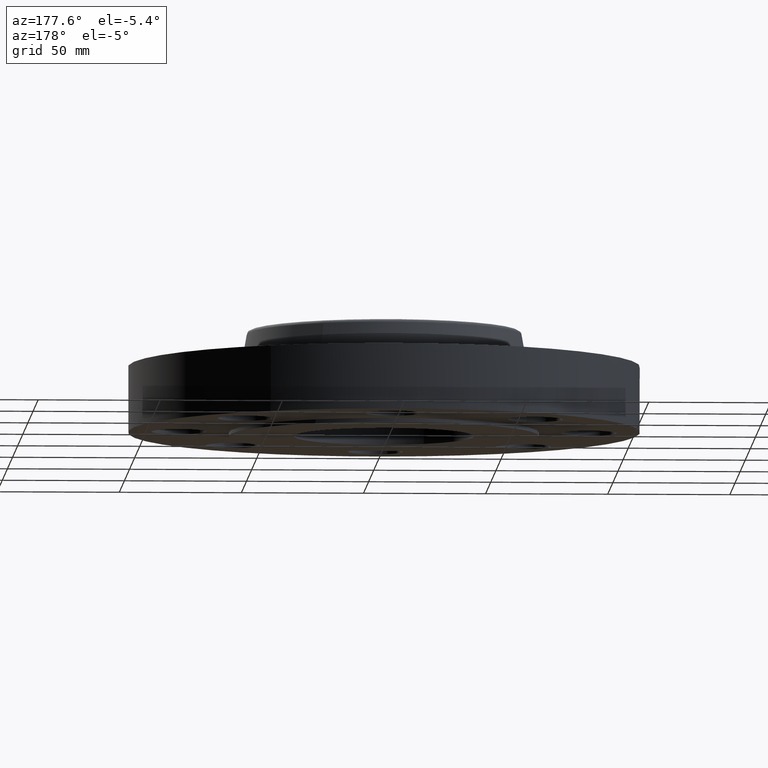
[diagram: clean part render]
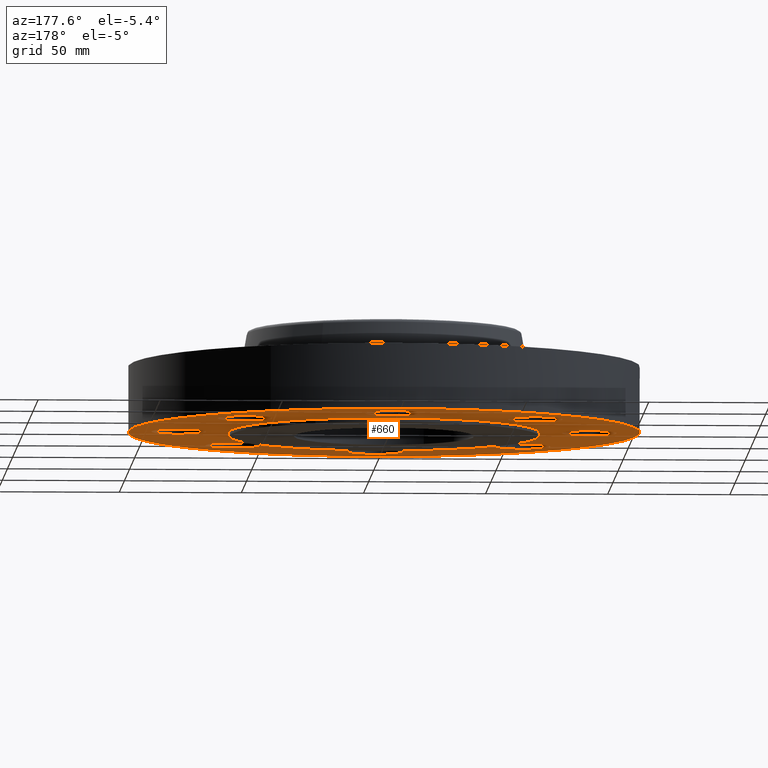
[diagram: same view with one face highlighted and labeled with its STEP entity id]
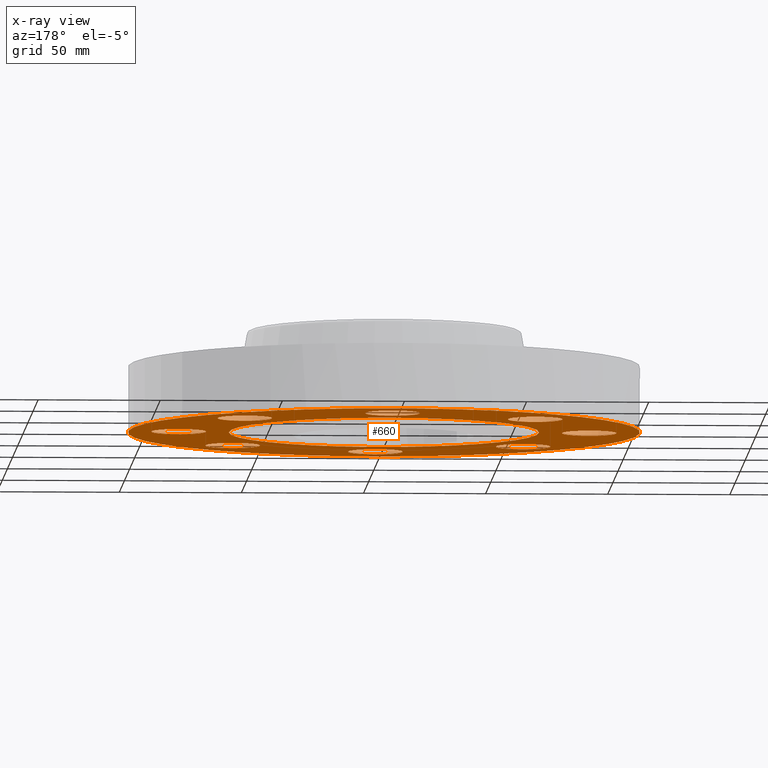
[diagram: x-ray of the same camera — body ghosted, the highlighted face saturated]
A machine part, auxiliary view. The second image highlights one B-rep face of the part: STEP entity #660.
The next image is the same camera in x-ray: the body ghosted, the highlighted face saturated — about 0% of this face is hidden behind the body in this view.
In plain terms, the highlighted planar face has unit normal (0, 0, -1).
Its self-contained STEP definition (entity closure, byte-faithful):
#379=AXIS2_PLACEMENT_3D('Circle Axis2P3D',#377,#378,$) ;
#410=AXIS2_PLACEMENT_3D('Circle Axis2P3D',#408,#409,$) ;
#492=AXIS2_PLACEMENT_3D('Plane Axis2P3D',#489,#490,#491) ;
#496=AXIS2_PLACEMENT_3D('Circle Axis2P3D',#494,#495,$) ;
#505=AXIS2_PLACEMENT_3D('Circle Axis2P3D',#503,#504,$) ;
#514=AXIS2_PLACEMENT_3D('Circle Axis2P3D',#512,#513,$) ;
#523=AXIS2_PLACEMENT_3D('Circle Axis2P3D',#521,#522,$) ;
#536=AXIS2_PLACEMENT_3D('Circle Axis2P3D',#534,#535,$) ;
#545=AXIS2_PLACEMENT_3D('Circle Axis2P3D',#543,#544,$) ;
#554=AXIS2_PLACEMENT_3D('Circle Axis2P3D',#552,#553,$) ;
#563=AXIS2_PLACEMENT_3D('Circle Axis2P3D',#561,#562,$) ;
#572=AXIS2_PLACEMENT_3D('Circle Axis2P3D',#570,#571,$) ;
#581=AXIS2_PLACEMENT_3D('Circle Axis2P3D',#579,#580,$) ;
#590=AXIS2_PLACEMENT_3D('Circle Axis2P3D',#588,#589,$) ;
#599=AXIS2_PLACEMENT_3D('Circle Axis2P3D',#597,#598,$) ;
#608=AXIS2_PLACEMENT_3D('Circle Axis2P3D',#606,#607,$) ;
#617=AXIS2_PLACEMENT_3D('Circle Axis2P3D',#615,#616,$) ;
#626=AXIS2_PLACEMENT_3D('Circle Axis2P3D',#624,#625,$) ;
#635=AXIS2_PLACEMENT_3D('Circle Axis2P3D',#633,#634,$) ;
#644=AXIS2_PLACEMENT_3D('Circle Axis2P3D',#642,#643,$) ;
#653=AXIS2_PLACEMENT_3D('Circle Axis2P3D',#651,#652,$) ;
#374=CARTESIAN_POINT('Vertex',(-1.19856384652,-2.19395640473,-3.45340554053E-012)) ;
#377=CARTESIAN_POINT('Axis2P3D Location',(0.,0.,-3.45340554053E-012)) ;
#381=CARTESIAN_POINT('Vertex',(1.19856384652,2.19395640473,-3.45340554053E-012)) ;
#408=CARTESIAN_POINT('Axis2P3D Location',(0.,0.,-3.45340554053E-012)) ;
#489=CARTESIAN_POINT('Axis2P3D Location',(0.,2.50000000001,0.)) ;
#494=CARTESIAN_POINT('Axis2P3D Location',(1.1189649382E-015,1.00007491352E-011,0.)) ;
#498=CARTESIAN_POINT('Vertex',(-1.97763034678,-3.62002806781,0.)) ;
#500=CARTESIAN_POINT('Vertex',(1.97763034678,3.62002806783,0.)) ;
#503=CARTESIAN_POINT('Axis2P3D Location',(-1.1189649382E-015,9.99963017027E-012,0.)) ;
#512=CARTESIAN_POINT('Axis2P3D Location',(3.30999999999,-2.81139940724E-012,0.)) ;
#516=CARTESIAN_POINT('Vertex',(3.69613632721,-0.21094723699,0.)) ;
#518=CARTESIAN_POINT('Vertex',(2.92386367279,0.21094723701,0.)) ;
#521=CARTESIAN_POINT('Axis2P3D Location',(3.31000000001,2.28117787127E-011,0.)) ;
#534=CARTESIAN_POINT('Axis2P3D Location',(2.34052344572,-2.34052344573,0.)) ;
#538=CARTESIAN_POINT('Vertex',(2.216646052,-1.91832160855,0.)) ;
#540=CARTESIAN_POINT('Vertex',(2.46440083947,-2.76272528291,0.)) ;
#543=CARTESIAN_POINT('Axis2P3D Location',(2.34052344574,-2.34052344573,0.)) ;
#552=CARTESIAN_POINT('Axis2P3D Location',(-3.49676543189E-017,-3.31000000003,0.)) ;
#556=CARTESIAN_POINT('Vertex',(0.210947237,-2.92386367278,0.)) ;
#558=CARTESIAN_POINT('Vertex',(-0.210947237,-3.69613632727,0.)) ;
#561=CARTESIAN_POINT('Axis2P3D Location',(3.49676543189E-017,-3.31000000003,0.)) ;
#570=CARTESIAN_POINT('Axis2P3D Location',(-2.34052344574,-2.34052344574,0.)) ;
#574=CARTESIAN_POINT('Vertex',(-1.91832160856,-2.21664605207,0.)) ;
#576=CARTESIAN_POINT('Vertex',(-2.76272528292,-2.46440083946,0.)) ;
#579=CARTESIAN_POINT('Axis2P3D Location',(-2.34052344575,-2.34052344572,0.)) ;
#588=CARTESIAN_POINT('Axis2P3D Location',(-3.31000000001,-2.81139940724E-012,0.)) ;
#592=CARTESIAN_POINT('Vertex',(-2.92386367279,-0.21094723699,0.)) ;
#594=CARTESIAN_POINT('Vertex',(-3.69613632721,0.21094723701,0.)) ;
#597=CARTESIAN_POINT('Axis2P3D Location',(-3.30999999999,2.28117787127E-011,0.)) ;
#606=CARTESIAN_POINT('Axis2P3D Location',(-2.34052344574,2.34052344575,0.)) ;
#610=CARTESIAN_POINT('Vertex',(-2.216646052,1.91832160857,0.)) ;
#612=CARTESIAN_POINT('Vertex',(-2.46440083947,2.76272528293,0.)) ;
#615=CARTESIAN_POINT('Axis2P3D Location',(-2.34052344574,2.34052344575,0.)) ;
#624=CARTESIAN_POINT('Axis2P3D Location',(-1.28117289306E-011,3.31000000002,0.)) ;
#628=CARTESIAN_POINT('Vertex',(-0.210947237,2.9238636728,0.)) ;
#630=CARTESIAN_POINT('Vertex',(0.210947237,3.69613632722,0.)) ;
#633=CARTESIAN_POINT('Axis2P3D Location',(1.28117289306E-011,3.31,0.)) ;
#642=CARTESIAN_POINT('Axis2P3D Location',(2.34052344572,2.34052344575,0.)) ;
#646=CARTESIAN_POINT('Vertex',(1.91832160856,2.21664605201,0.)) ;
#648=CARTESIAN_POINT('Vertex',(2.76272528292,2.46440083941,0.)) ;
#651=CARTESIAN_POINT('Axis2P3D Location',(2.34052344573,2.34052344573,0.)) ;
#378=DIRECTION('Axis2P3D Direction',(0.,0.,-0.0393700787402)) ;
#409=DIRECTION('Axis2P3D Direction',(0.,0.,-0.0393700787402)) ;
#490=DIRECTION('Axis2P3D Direction',(0.,0.,-0.0393700787402)) ;
#491=DIRECTION('Axis2P3D XDirection',(0.0393700787402,0.,0.)) ;
#495=DIRECTION('Axis2P3D Direction',(0.,0.,-0.0393700787402)) ;
#504=DIRECTION('Axis2P3D Direction',(0.,0.,-0.0393700787402)) ;
#513=DIRECTION('Axis2P3D Direction',(0.,0.,-0.0393700787402)) ;
#522=DIRECTION('Axis2P3D Direction',(0.,0.,-0.0393700787402)) ;
#535=DIRECTION('Axis2P3D Direction',(0.,0.,-0.0393700787402)) ;
#544=DIRECTION('Axis2P3D Direction',(0.,0.,-0.0393700787402)) ;
#553=DIRECTION('Axis2P3D Direction',(0.,0.,-0.0393700787402)) ;
#562=DIRECTION('Axis2P3D Direction',(0.,0.,-0.0393700787402)) ;
#571=DIRECTION('Axis2P3D Direction',(0.,0.,-0.0393700787402)) ;
#580=DIRECTION('Axis2P3D Direction',(0.,0.,-0.0393700787402)) ;
#589=DIRECTION('Axis2P3D Direction',(0.,0.,-0.0393700787402)) ;
#598=DIRECTION('Axis2P3D Direction',(0.,0.,-0.0393700787402)) ;
#607=DIRECTION('Axis2P3D Direction',(0.,0.,-0.0393700787402)) ;
#616=DIRECTION('Axis2P3D Direction',(0.,0.,-0.0393700787402)) ;
#625=DIRECTION('Axis2P3D Direction',(0.,0.,-0.0393700787402)) ;
#634=DIRECTION('Axis2P3D Direction',(0.,0.,-0.0393700787402)) ;
#643=DIRECTION('Axis2P3D Direction',(0.,0.,-0.0393700787402)) ;
#652=DIRECTION('Axis2P3D Direction',(0.,0.,-0.0393700787402)) ;
#509=ORIENTED_EDGE('',*,*,#502,.T.) ;
#510=ORIENTED_EDGE('',*,*,#507,.T.) ;
#527=ORIENTED_EDGE('',*,*,#520,.F.) ;
#528=ORIENTED_EDGE('',*,*,#525,.F.) ;
#531=ORIENTED_EDGE('',*,*,#412,.F.) ;
#532=ORIENTED_EDGE('',*,*,#383,.F.) ;
#549=ORIENTED_EDGE('',*,*,#542,.F.) ;
#550=ORIENTED_EDGE('',*,*,#547,.F.) ;
#567=ORIENTED_EDGE('',*,*,#560,.F.) ;
#568=ORIENTED_EDGE('',*,*,#565,.F.) ;
#585=ORIENTED_EDGE('',*,*,#578,.F.) ;
#586=ORIENTED_EDGE('',*,*,#583,.F.) ;
#603=ORIENTED_EDGE('',*,*,#596,.F.) ;
#604=ORIENTED_EDGE('',*,*,#601,.F.) ;
#621=ORIENTED_EDGE('',*,*,#614,.F.) ;
#622=ORIENTED_EDGE('',*,*,#619,.F.) ;
#639=ORIENTED_EDGE('',*,*,#632,.F.) ;
#640=ORIENTED_EDGE('',*,*,#637,.F.) ;
#657=ORIENTED_EDGE('',*,*,#650,.F.) ;
#658=ORIENTED_EDGE('',*,*,#655,.F.) ;
#529=FACE_BOUND('',#526,.T.) ;
#533=FACE_BOUND('',#530,.T.) ;
#551=FACE_BOUND('',#548,.T.) ;
#569=FACE_BOUND('',#566,.T.) ;
#587=FACE_BOUND('',#584,.T.) ;
#605=FACE_BOUND('',#602,.T.) ;
#623=FACE_BOUND('',#620,.T.) ;
#641=FACE_BOUND('',#638,.T.) ;
#659=FACE_BOUND('',#656,.T.) ;
#660=ADVANCED_FACE('PartBody',(#511,#529,#533,#551,#569,#587,#605,#623,#641,#659),#493,.T.) ;
#380=CIRCLE('generated circle',#379,2.50000000001) ;
#411=CIRCLE('generated circle',#410,2.50000000001) ;
#497=CIRCLE('generated circle',#496,4.12500000004) ;
#506=CIRCLE('generated circle',#505,4.12500000004) ;
#515=CIRCLE('generated circle',#514,0.439999999988) ;
#524=CIRCLE('generated circle',#523,0.439999999988) ;
#537=CIRCLE('generated circle',#536,0.439999999995) ;
#546=CIRCLE('generated circle',#545,0.439999999995) ;
#555=CIRCLE('generated circle',#554,0.44000000002) ;
#564=CIRCLE('generated circle',#563,0.44000000002) ;
#573=CIRCLE('generated circle',#572,0.439999999984) ;
#582=CIRCLE('generated circle',#581,0.439999999984) ;
#591=CIRCLE('generated circle',#590,0.439999999988) ;
#600=CIRCLE('generated circle',#599,0.439999999988) ;
#609=CIRCLE('generated circle',#608,0.439999999995) ;
#618=CIRCLE('generated circle',#617,0.439999999995) ;
#627=CIRCLE('generated circle',#626,0.439999999988) ;
#636=CIRCLE('generated circle',#635,0.439999999988) ;
#645=CIRCLE('generated circle',#644,0.439999999984) ;
#654=CIRCLE('generated circle',#653,0.439999999984) ;
#383=EDGE_CURVE('',#375,#382,#380,.T.) ;
#412=EDGE_CURVE('',#382,#375,#411,.T.) ;
#502=EDGE_CURVE('',#499,#501,#497,.T.) ;
#507=EDGE_CURVE('',#501,#499,#506,.T.) ;
#520=EDGE_CURVE('',#517,#519,#515,.T.) ;
#525=EDGE_CURVE('',#519,#517,#524,.T.) ;
#542=EDGE_CURVE('',#539,#541,#537,.T.) ;
#547=EDGE_CURVE('',#541,#539,#546,.T.) ;
#560=EDGE_CURVE('',#557,#559,#555,.T.) ;
#565=EDGE_CURVE('',#559,#557,#564,.T.) ;
#578=EDGE_CURVE('',#575,#577,#573,.T.) ;
#583=EDGE_CURVE('',#577,#575,#582,.T.) ;
#596=EDGE_CURVE('',#593,#595,#591,.T.) ;
#601=EDGE_CURVE('',#595,#593,#600,.T.) ;
#614=EDGE_CURVE('',#611,#613,#609,.T.) ;
#619=EDGE_CURVE('',#613,#611,#618,.T.) ;
#632=EDGE_CURVE('',#629,#631,#627,.T.) ;
#637=EDGE_CURVE('',#631,#629,#636,.T.) ;
#650=EDGE_CURVE('',#647,#649,#645,.T.) ;
#655=EDGE_CURVE('',#649,#647,#654,.T.) ;
#508=EDGE_LOOP('',(#509,#510)) ;
#526=EDGE_LOOP('',(#527,#528)) ;
#530=EDGE_LOOP('',(#531,#532)) ;
#548=EDGE_LOOP('',(#549,#550)) ;
#566=EDGE_LOOP('',(#567,#568)) ;
#584=EDGE_LOOP('',(#585,#586)) ;
#602=EDGE_LOOP('',(#603,#604)) ;
#620=EDGE_LOOP('',(#621,#622)) ;
#638=EDGE_LOOP('',(#639,#640)) ;
#656=EDGE_LOOP('',(#657,#658)) ;
#511=FACE_OUTER_BOUND('',#508,.T.) ;
#493=PLANE('',#492) ;
#375=VERTEX_POINT('',#374) ;
#382=VERTEX_POINT('',#381) ;
#499=VERTEX_POINT('',#498) ;
#501=VERTEX_POINT('',#500) ;
#517=VERTEX_POINT('',#516) ;
#519=VERTEX_POINT('',#518) ;
#539=VERTEX_POINT('',#538) ;
#541=VERTEX_POINT('',#540) ;
#557=VERTEX_POINT('',#556) ;
#559=VERTEX_POINT('',#558) ;
#575=VERTEX_POINT('',#574) ;
#577=VERTEX_POINT('',#576) ;
#593=VERTEX_POINT('',#592) ;
#595=VERTEX_POINT('',#594) ;
#611=VERTEX_POINT('',#610) ;
#613=VERTEX_POINT('',#612) ;
#629=VERTEX_POINT('',#628) ;
#631=VERTEX_POINT('',#630) ;
#647=VERTEX_POINT('',#646) ;
#649=VERTEX_POINT('',#648) ;